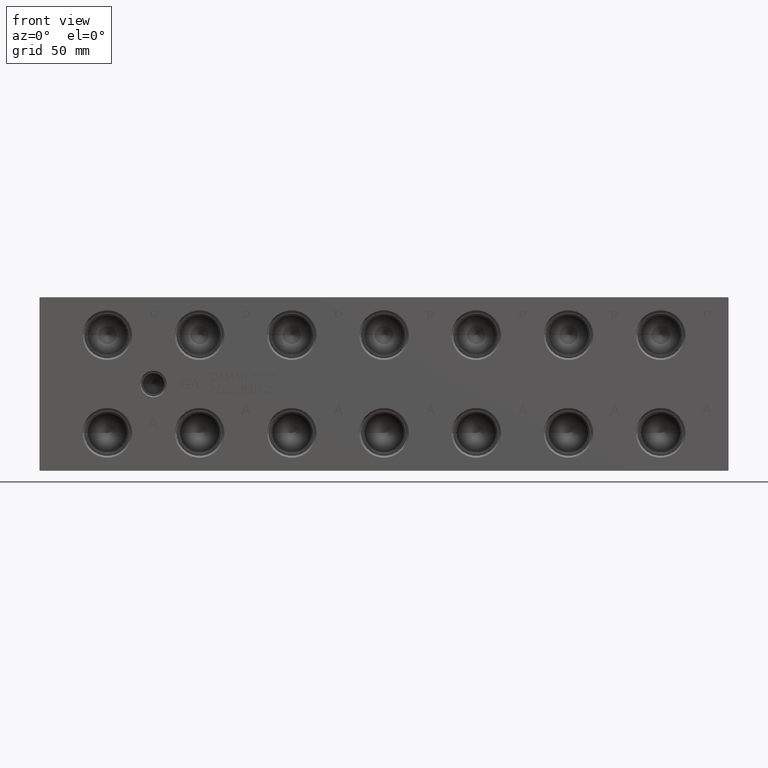
[diagram: clean part render]
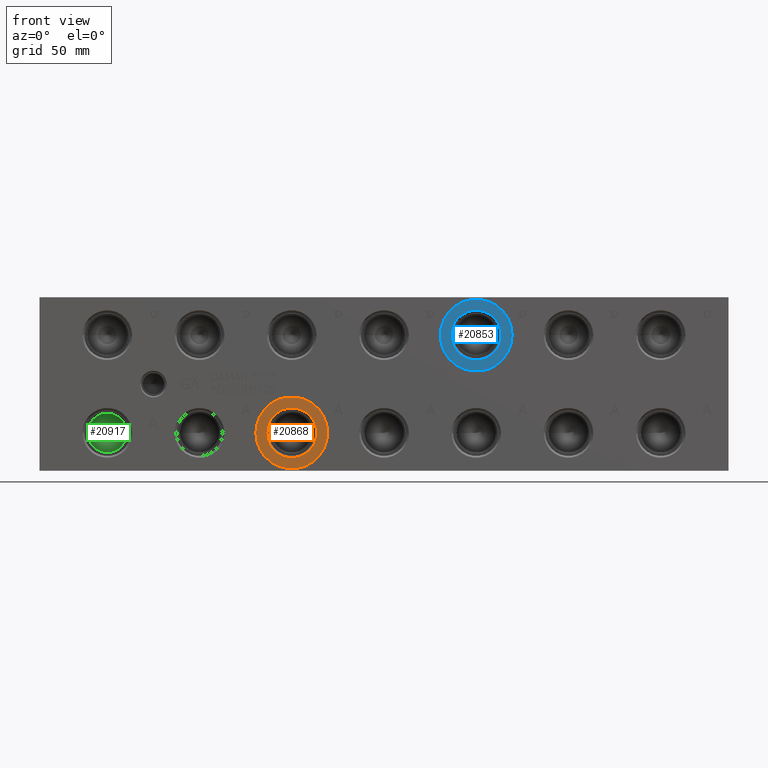
[diagram: same view with three faces highlighted in distinct colors, each labeled with its STEP entity id]
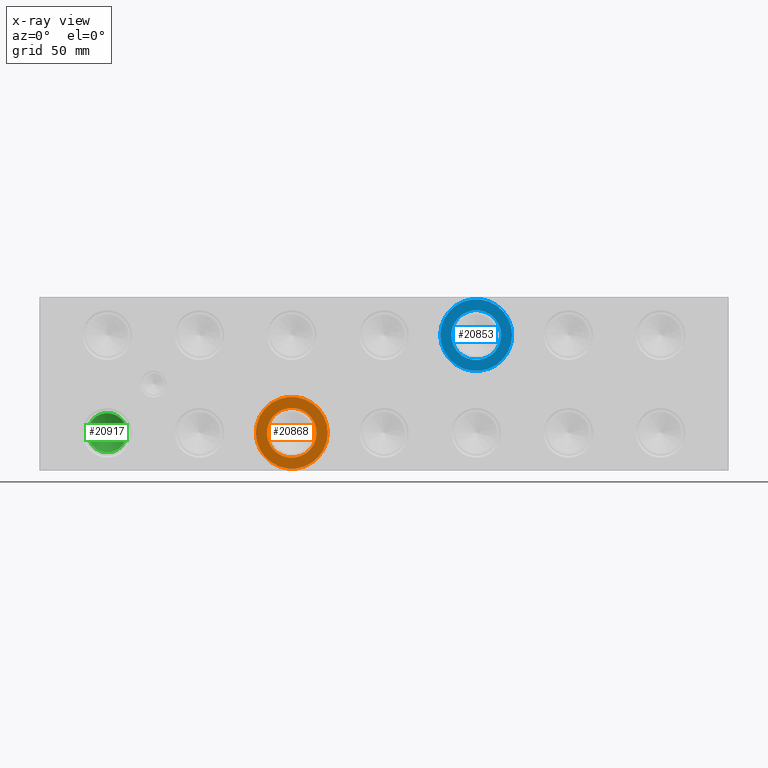
[diagram: x-ray of the same camera — body ghosted, the three highlighted faces saturated]
A machine part, front view with three faces highlighted in distinct colors.
The next image is the same camera in x-ray (body ghosted, the three faces saturated) — at least one of them is partly hidden behind the body in this view.
Their STEP definitions:

[orange] entity #20868 — the highlighted planar face has unit normal (0, 1, 0).
#596=CIRCLE('',#21999,21.0185);
#597=CIRCLE('',#22000,21.0185);
#598=CIRCLE('',#22002,14.5923);
#599=CIRCLE('',#22003,14.5923);
#1234=FACE_BOUND('',#4034,.T.);
#2807=FACE_OUTER_BOUND('',#4033,.T.);
#4033=EDGE_LOOP('',(#17269,#17270));
#4034=EDGE_LOOP('',(#17271,#17272));
#9436=VERTEX_POINT('',#35187);
#9437=VERTEX_POINT('',#35189);
#9438=VERTEX_POINT('',#35193);
#9439=VERTEX_POINT('',#35194);
#12200=EDGE_CURVE('',#9436,#9437,#596,.T.);
#12201=EDGE_CURVE('',#9437,#9436,#597,.T.);
#12202=EDGE_CURVE('',#9438,#9439,#598,.T.);
#12203=EDGE_CURVE('',#9439,#9438,#599,.T.);
#17269=ORIENTED_EDGE('',*,*,#12201,.F.);
#17270=ORIENTED_EDGE('',*,*,#12200,.F.);
#17271=ORIENTED_EDGE('',*,*,#12202,.T.);
#17272=ORIENTED_EDGE('',*,*,#12203,.T.);
#19367=PLANE('',#22001);
#20868=ADVANCED_FACE('',(#2807,#1234),#19367,.F.);
#21999=AXIS2_PLACEMENT_3D('',#35190,#25935,#25936);
#22000=AXIS2_PLACEMENT_3D('',#35191,#25937,#25938);
#22001=AXIS2_PLACEMENT_3D('',#35192,#25939,#25940);
#22002=AXIS2_PLACEMENT_3D('',#35195,#25941,#25942);
#22003=AXIS2_PLACEMENT_3D('',#35196,#25943,#25944);
#25935=DIRECTION('center_axis',(0.,1.,0.));
#25936=DIRECTION('ref_axis',(1.,0.,0.));
#25937=DIRECTION('center_axis',(0.,1.,0.));
#25938=DIRECTION('ref_axis',(1.,0.,0.));
#25939=DIRECTION('center_axis',(0.,1.,0.));
#25940=DIRECTION('ref_axis',(0.,0.,1.));
#25941=DIRECTION('center_axis',(0.,1.,0.));
#25942=DIRECTION('ref_axis',(1.,0.,0.));
#25943=DIRECTION('center_axis',(0.,1.,0.));
#25944=DIRECTION('ref_axis',(1.,0.,0.));
#35187=CARTESIAN_POINT('',(126.6063,0.7874,22.225));
#35189=CARTESIAN_POINT('',(168.6433,0.7874,22.225));
#35190=CARTESIAN_POINT('Origin',(147.6248,0.7874,22.225));
#35191=CARTESIAN_POINT('Origin',(147.6248,0.7874,22.225));
#35192=CARTESIAN_POINT('Origin',(162.2171,0.7874,22.225));
#35193=CARTESIAN_POINT('',(162.2171,0.7874,22.225));
#35194=CARTESIAN_POINT('',(133.0325,0.787399999999995,22.225));
#35195=CARTESIAN_POINT('Origin',(147.6248,0.7874,22.225));
#35196=CARTESIAN_POINT('Origin',(147.6248,0.7874,22.225));

[blue] entity #20853 — the highlighted planar face has unit normal (0, 1, 0).
#569=CIRCLE('',#21957,21.0185);
#570=CIRCLE('',#21958,21.0185);
#571=CIRCLE('',#21960,14.5923);
#572=CIRCLE('',#21961,14.5923);
#1231=FACE_BOUND('',#4016,.T.);
#2792=FACE_OUTER_BOUND('',#4015,.T.);
#4015=EDGE_LOOP('',(#17188,#17189));
#4016=EDGE_LOOP('',(#17190,#17191));
#9409=VERTEX_POINT('',#35106);
#9410=VERTEX_POINT('',#35108);
#9411=VERTEX_POINT('',#35112);
#9412=VERTEX_POINT('',#35113);
#12161=EDGE_CURVE('',#9409,#9410,#569,.T.);
#12162=EDGE_CURVE('',#9410,#9409,#570,.T.);
#12163=EDGE_CURVE('',#9411,#9412,#571,.T.);
#12164=EDGE_CURVE('',#9412,#9411,#572,.T.);
#17188=ORIENTED_EDGE('',*,*,#12162,.F.);
#17189=ORIENTED_EDGE('',*,*,#12161,.F.);
#17190=ORIENTED_EDGE('',*,*,#12163,.T.);
#17191=ORIENTED_EDGE('',*,*,#12164,.T.);
#19364=PLANE('',#21959);
#20853=ADVANCED_FACE('',(#2792,#1231),#19364,.F.);
#21957=AXIS2_PLACEMENT_3D('',#35109,#25839,#25840);
#21958=AXIS2_PLACEMENT_3D('',#35110,#25841,#25842);
#21959=AXIS2_PLACEMENT_3D('',#35111,#25843,#25844);
#21960=AXIS2_PLACEMENT_3D('',#35114,#25845,#25846);
#21961=AXIS2_PLACEMENT_3D('',#35115,#25847,#25848);
#25839=DIRECTION('center_axis',(0.,1.,0.));
#25840=DIRECTION('ref_axis',(1.,0.,0.));
#25841=DIRECTION('center_axis',(0.,1.,0.));
#25842=DIRECTION('ref_axis',(1.,0.,0.));
#25843=DIRECTION('center_axis',(0.,1.,0.));
#25844=DIRECTION('ref_axis',(0.,0.,1.));
#25845=DIRECTION('center_axis',(0.,1.,0.));
#25846=DIRECTION('ref_axis',(1.,0.,0.));
#25847=DIRECTION('center_axis',(0.,1.,0.));
#25848=DIRECTION('ref_axis',(1.,0.,0.));
#35106=CARTESIAN_POINT('',(234.5563,0.7874,79.375));
#35108=CARTESIAN_POINT('',(276.5933,0.7874,79.375));
#35109=CARTESIAN_POINT('Origin',(255.5748,0.7874,79.375));
#35110=CARTESIAN_POINT('Origin',(255.5748,0.7874,79.375));
#35111=CARTESIAN_POINT('Origin',(270.1671,0.7874,79.375));
#35112=CARTESIAN_POINT('',(270.1671,0.7874,79.375));
#35113=CARTESIAN_POINT('',(240.9825,0.787399999999995,79.375));
#35114=CARTESIAN_POINT('Origin',(255.5748,0.7874,79.375));
#35115=CARTESIAN_POINT('Origin',(255.5748,0.7874,79.375));

[green] entity #20917 — the highlighted conical surface has half-angle 60 deg.
#281=CONICAL_SURFACE('',#22129,5.7531,1.0471975511966);
#677=CIRCLE('',#22130,11.5062);
#678=CIRCLE('',#22131,11.5062);
#2856=FACE_OUTER_BOUND('',#4086,.T.);
#4086=EDGE_LOOP('',(#17512,#17513,#17514,#17515));
#5996=LINE('',#35458,#7751);
#7751=VECTOR('',#26244,5.7531);
#9526=VERTEX_POINT('',#35454);
#9527=VERTEX_POINT('',#35455);
#9528=VERTEX_POINT('',#35457);
#12326=EDGE_CURVE('',#9526,#9527,#677,.T.);
#12327=EDGE_CURVE('',#9527,#9528,#5996,.T.);
#12328=EDGE_CURVE('',#9527,#9526,#678,.T.);
#17512=ORIENTED_EDGE('',*,*,#12326,.T.);
#17513=ORIENTED_EDGE('',*,*,#12327,.T.);
#17514=ORIENTED_EDGE('',*,*,#12327,.F.);
#17515=ORIENTED_EDGE('',*,*,#12328,.T.);
#20917=ADVANCED_FACE('',(#2856),#281,.F.);
#22129=AXIS2_PLACEMENT_3D('',#35453,#26240,#26241);
#22130=AXIS2_PLACEMENT_3D('',#35456,#26242,#26243);
#22131=AXIS2_PLACEMENT_3D('',#35459,#26245,#26246);
#26240=DIRECTION('center_axis',(0.,-1.,0.));
#26241=DIRECTION('ref_axis',(1.,0.,0.));
#26242=DIRECTION('center_axis',(0.,-1.,0.));
#26243=DIRECTION('ref_axis',(1.,0.,0.));
#26244=DIRECTION('',(0.866025403784439,0.5,1.06057523872491E-16));
#26245=DIRECTION('center_axis',(0.,-1.,0.));
#26246=DIRECTION('ref_axis',(1.,0.,0.));
#35453=CARTESIAN_POINT('Origin',(39.6748,34.1787738336748,22.225));
#35454=CARTESIAN_POINT('',(51.181,30.85722,22.225));
#35455=CARTESIAN_POINT('',(28.1686,30.85722,22.225));
#35456=CARTESIAN_POINT('Origin',(39.6748,30.85722,22.225));
#35457=CARTESIAN_POINT('',(39.6748,37.5003276673497,22.225));
#35458=CARTESIAN_POINT('',(33.9217,34.1787738336748,22.225));
#35459=CARTESIAN_POINT('Origin',(39.6748,30.85722,22.225));